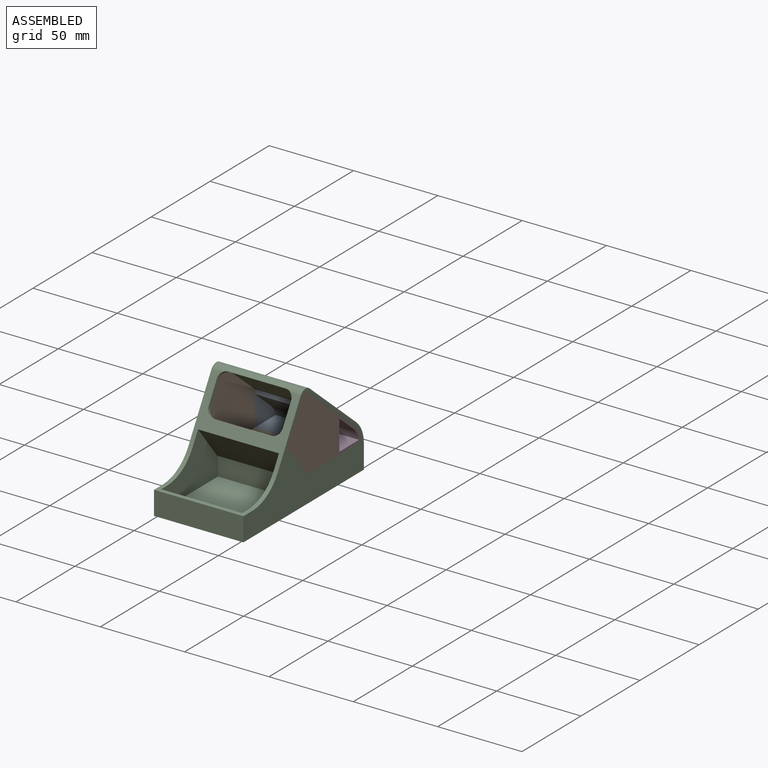
[diagram: assembled view]
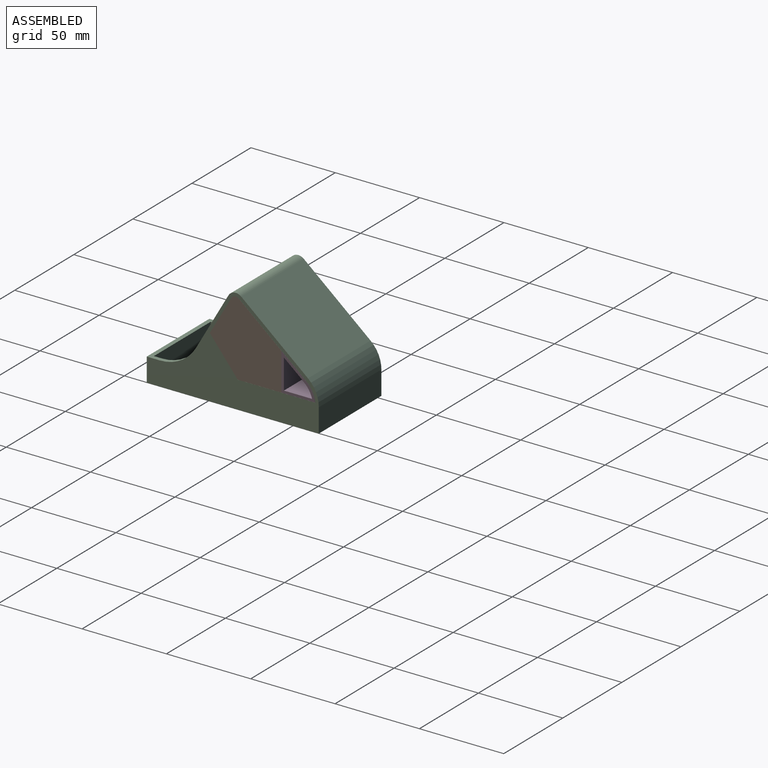
[diagram: assembled view, second angle]
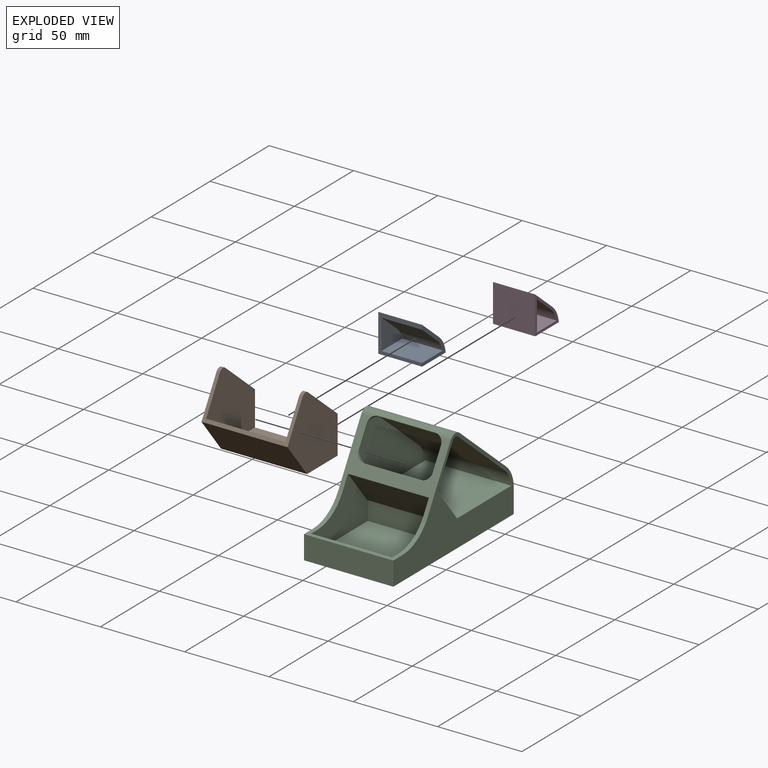
[diagram: exploded view]
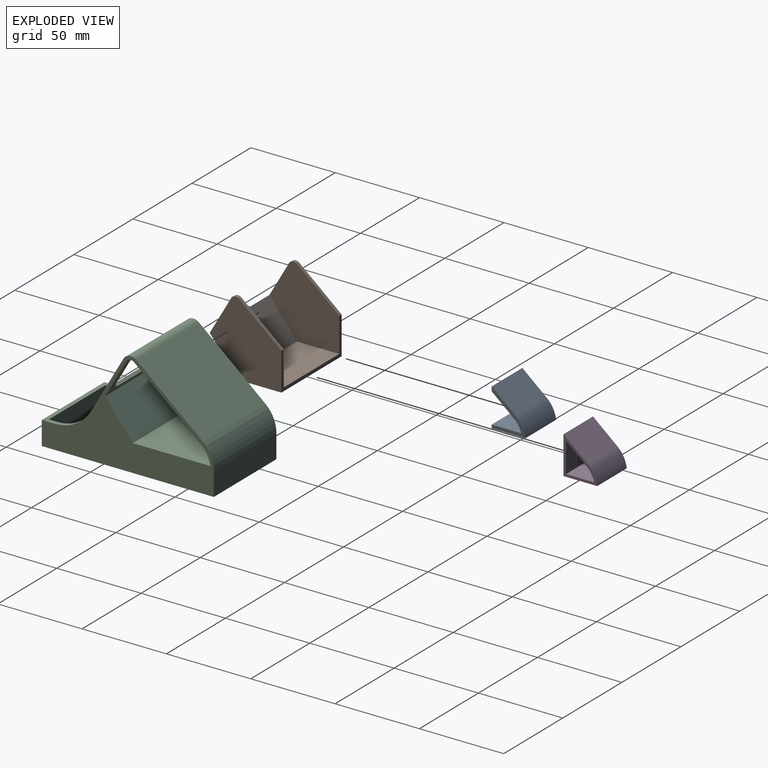
[diagram: exploded view, second angle]
ASSEMBLY  parts=4 mates=3
PART A: 10 faces, bbox 26x20x22.4 mm
  f0: plane 26x22.44mm, normal (0,-1,0), area 155.5mm2, adj f1,f2,f4,f5,f6,f8,f9
  f1: plane 22.44x20mm, normal (1,0,0), area 93.9mm2, adj f0,f2,f3,f4,f6,f7,f8
  f2: plane 26x20mm, normal (0,0,-1), area 520mm2, adj f0,f1,f3,f5
  f3: cylinder r=16mm len=26mm, axis (1,0,0), area 313.7mm2, adj f1,f2,f4,f5
  f4: plane 26x14.4mm, normal (0,0.64,0.77), area 488.6mm2, adj f0,f1,f3,f5
  f5: plane 22.44x20mm, normal (-1,0,0), area 274.1mm2, adj f0,f2,f3,f4
  f6: plane 24x17.56mm, normal (0,0,1), area 421.4mm2, adj f0,f1,f7,f9
  f7: cylinder r=14mm len=24mm, axis (1,0,0), area 198.5mm2, adj f1,f6,f8,f9
  f8: plane 24x13.11mm, normal (0,-0.64,-0.77), area 410.8mm2, adj f0,f1,f7,f9
  f9: plane 17.83x17.56mm, normal (1,0,0), area 180.2mm2, adj f0,f6,f7,f8
PART B: 14 faces, bbox 51x42.5x44.3 mm
  f0: plane 51x22.1mm, normal (0,-0.87,0.5), area 203mm2, adj f1,f5,f6,f8,f9,f10,f12,f13
  f1: cylinder r=3mm len=4.53mm, axis (1,0,0), area 10.5mm2, adj f0,f2,f9,f13
  f2: plane 25.19x21.14mm, normal (0,0.64,0.77), area 65.8mm2, adj f1,f3,f9,f13
  f3: plane 51x22.44mm, normal (0,1,0), area 183.8mm2, adj f2,f4,f7,f8,f9,f11,f12,f13
  f4: plane 25.19x21.14mm, normal (0,0.64,0.77), area 65.8mm2, adj f3,f5,f8,f12
  f5: cylinder r=3mm len=4.53mm, axis (1,0,0), area 10.5mm2, adj f0,f4,f8,f12
  f6: plane 51x20.68mm, normal (0,-0.78,-0.62), area 1350.8mm2, adj f0,f7,f8,f9
  f7: plane 51x25.93mm, normal (0,0,-1), area 1322.2mm2, adj f3,f6,f8,f9
  f8: plane 44.28x42.47mm, normal (-1,0,0), area 1264.1mm2, adj f0,f3,f4,f5,f6,f7
  f9: plane 44.28x42.47mm, normal (1,0,0), area 1264.1mm2, adj f0,f1,f2,f3,f6,f7
  f10: plane 47x20.54mm, normal (0,0.78,0.62), area 1236.4mm2, adj f0,f11,f12,f13
  f11: plane 47x24.97mm, normal (0,0,1), area 1173.4mm2, adj f3,f10,f12,f13
  f12: plane 42.28x41.4mm, normal (1,0,0), area 1160.4mm2, adj f0,f3,f4,f5,f10,f11
  f13: plane 42.28x41.4mm, normal (-1,0,0), area 1160.4mm2, adj f0,f1,f2,f3,f10,f11
PART C: 34 faces, bbox 53x102x62.3 mm
  f0: plane 48x0.7mm, normal (0,0,-1), area 33.7mm2, adj f4,f5,f6,f30
  f1: plane 53x33.28mm, normal (0,-0.87,0.5), area 636.8mm2, adj f2,f3,f4,f5,f6,f11,f20,f21
  f2: plane 102x62.28mm, normal (-1,0,0), area 3696.3mm2, adj f1,f7,f8,f9,f10,f11,f27,f28
  f3: plane 102x62.28mm, normal (1,0,0), area 2158.1mm2, adj f1,f7,f8,f9,f10,f11,f13,f14
  f4: plane 48x31.68mm, normal (1,0,0), area 865.9mm2, adj f0,f1,f6,f7,f29,f30,f31,f33
  f5: plane 48x31.68mm, normal (-1,0,0), area 865.9mm2, adj f0,f1,f6,f7,f29,f30,f31,f32
  f6: plane 48x20.18mm, normal (0,-0.78,-0.62), area 1240.2mm2, adj f0,f1,f4,f5
  f7: plane 53x7.58mm, normal (0,0,1), area 157.9mm2, adj f2,f3,f4,f5,f28,f29,f32,f33
  f8: plane 53x14.11mm, normal (0,1,0), area 747.6mm2, adj f2,f3,f10,f27
  f9: plane 53x39.59mm, normal (0,0.64,0.77), area 2738.7mm2, adj f2,f3,f10,f11
  f10: cylinder r=18mm len=53mm, axis (1,0,0), area 832.5mm2, adj f2,f3,f8,f9
  f11: cylinder r=5mm len=53mm, axis (-1,0,0), area 401.6mm2, adj f1,f2,f3,f9,f19,f24,f25
  f12: plane 62.47x44.28mm, normal (1,0,0), area 1538.2mm2, adj f13,f14,f15,f16,f17,f18
  f13: plane 51x45.93mm, normal (0,0,1), area 2342.2mm2, adj f3,f12,f16,f17
  f14: plane 51x39.59mm, normal (0,-0.64,-0.77), area 2635.4mm2, adj f3,f12,f17,f18
  f15: plane 51x22.1mm, normal (0,0.87,-0.5), area 326.8mm2, adj f3,f12,f16,f18,f20,f21,f22,f23
  f16: plane 51x20.68mm, normal (0,0.78,0.62), area 1350.8mm2, adj f3,f12,f13,f15
  f17: cylinder r=16mm len=51mm, axis (1,0,0), area 615.3mm2, adj f3,f12,f13,f14
  f18: cylinder r=3mm len=51mm, axis (-1,0,0), area 204.2mm2, adj f3,f12,f14,f15,f19,f24,f25
  f19: plane 34x1.89mm, normal (0,-0.5,-0.87), area 74.2mm2, adj f11,f18,f24,f25
  f20: cylinder r=5mm len=5.33mm, axis (0,-0.87,0.5), area 15.7mm2, adj f1,f15,f21,f26
  f21: plane 34x1.73mm, normal (0,0.5,0.87), area 68mm2, adj f1,f15,f20,f22
  f22: cylinder r=5mm len=5.33mm, axis (0,-0.87,0.5), area 15.7mm2, adj f1,f15,f21,f23
  f23: plane 13.12x8.73mm, normal (-1,0,0), area 28mm2, adj f1,f15,f22,f24
  f24: cylinder r=5mm len=5.54mm, axis (0,-0.87,0.5), area 16.1mm2, adj f1,f11,f15,f18,f19,f23
  f25: cylinder r=5mm len=5.54mm, axis (0,-0.87,0.5), area 16.1mm2, adj f1,f11,f15,f18,f19,f26
  f26: plane 13.12x8.73mm, normal (1,0,0), area 28mm2, adj f1,f15,f20,f25
  f27: plane 102x53mm, normal (0,0,-1), area 5406mm2, adj f2,f3,f8,f28
  f28: plane 53x14mm, normal (0,-1,0), area 742mm2, adj f2,f3,f7,f27
  f29: plane 48x11.5mm, normal (0,1,0), area 552mm2, adj f4,f5,f7,f31
  f30: plane 48x11.5mm, normal (0,-1,0), area 552mm2, adj f0,f4,f5,f31
  f31: plane 48x48mm, normal (0,0,1), area 2304mm2, adj f4,f5,f29,f30
  f32: cylinder r=25mm len=21.65mm, axis (-1,0,0), area 65.4mm2, adj f1,f3,f5,f7
  f33: cylinder r=25mm len=21.65mm, axis (-1,0,0), area 65.4mm2, adj f1,f2,f4,f7
PART D: 11 faces, bbox 25x20x22.4 mm
  f0: plane 22.44x20mm, normal (1,0,0), area 99.4mm2, adj f1,f2,f3,f4,f6,f7,f8,f9
  f1: plane 25x22.44mm, normal (0,-1,0), area 561.1mm2, adj f0,f2,f4,f5
  f2: plane 25x20mm, normal (0,0,-1), area 500mm2, adj f0,f1,f3,f5
  f3: cylinder r=16mm len=25mm, axis (1,0,0), area 301.6mm2, adj f0,f2,f4,f5
  f4: plane 25x14.4mm, normal (0,0.64,0.77), area 469.9mm2, adj f0,f1,f3,f5
  f5: plane 22.44x20mm, normal (-1,0,0), area 274.1mm2, adj f1,f2,f3,f4
  f6: plane 23.5x17.73mm, normal (0,1,0), area 416.6mm2, adj f0,f7,f9,f10
  f7: plane 23.5x16.71mm, normal (0,0,1), area 392.7mm2, adj f0,f6,f8,f10
  f8: cylinder r=14.5mm len=23.5mm, axis (1,0,0), area 216.9mm2, adj f0,f7,f9,f10
  f9: plane 23.5x11.93mm, normal (0,-0.64,-0.77), area 366.1mm2, adj f0,f6,f8,f10
  f10: plane 17.73x16.71mm, normal (1,0,0), area 174.6mm2, adj f6,f7,f8,f9
PLACE A t=(53.7,-30.22,0.79)mm
PLACE B t=(53.7,-30.22,0.79)mm
PLACE C rot(axis=(1,0,0),0deg) t=(27.2,-33.09,-15.23)mm fixed
PLACE D t=(53.7,-30.22,0.79)mm
MATE fastened D.f1 <-> B.f3  axis (0,-1,0) through (53.7,-4.3,12.01)mm
MATE fastened A.f0 <-> B.f3  axis (0,-1,0) through (2.7,-4.3,12.01)mm
MATE slider C.f12 <-> B.f8  axis (1,0,0) through (2.7,-19.1,17.83)mm
